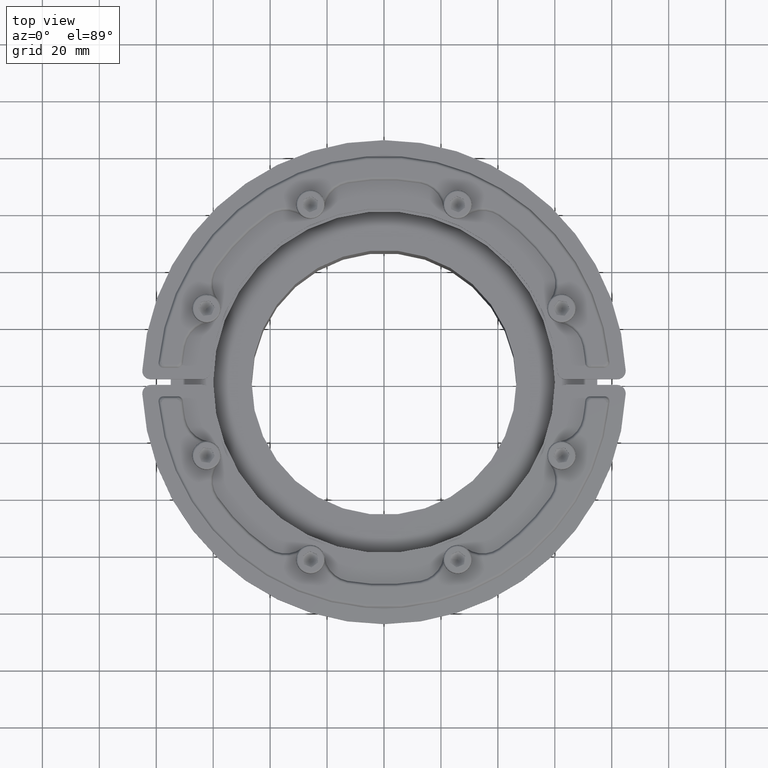
[diagram: clean part render]
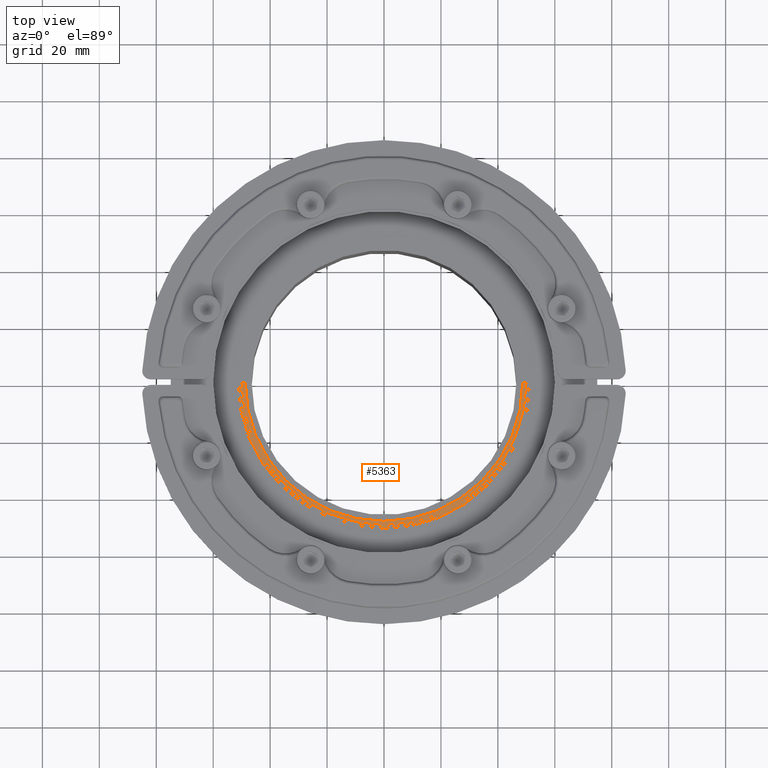
[diagram: same view with one face highlighted and labeled with its STEP entity id]
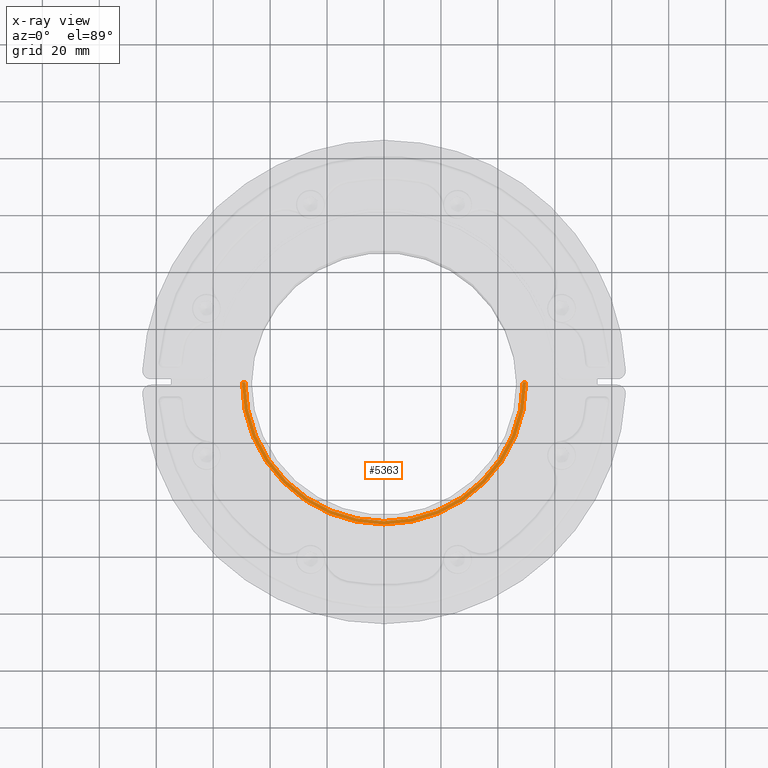
[diagram: x-ray of the same camera — body ghosted, the highlighted face saturated]
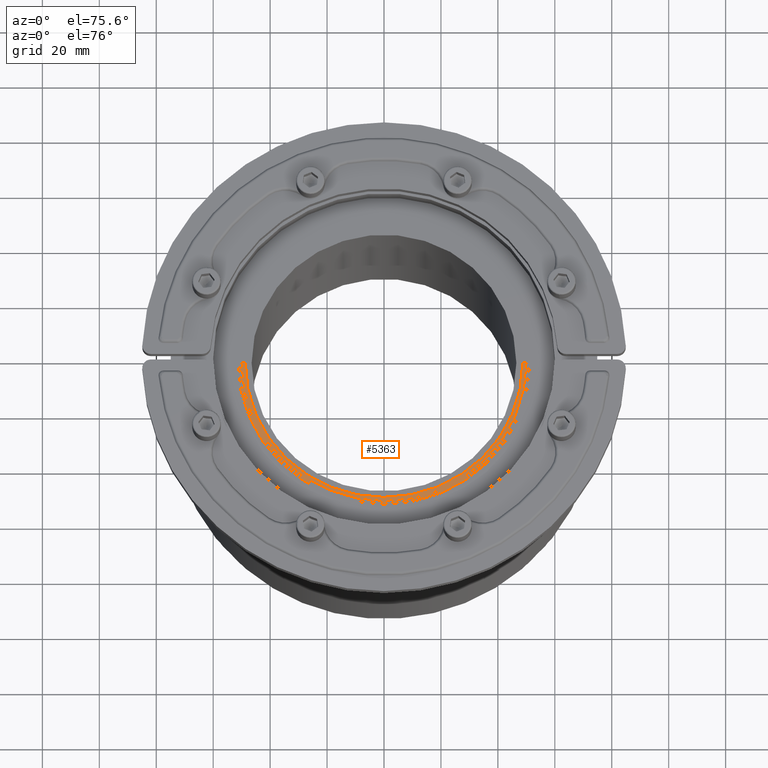
[diagram: same view with one face highlighted and labeled with its STEP entity id]
A machine part, top view. The second image highlights one B-rep face of the part: STEP entity #5363.
The next image is the same camera in x-ray: the body ghosted, the highlighted face saturated — about 0% of this face is hidden behind the body in this view.
A second angle (auxiliary view) of the same face is appended — the face is thin or edge-on in the first view.
In plain terms, the highlighted planar face has unit normal (0, 0, 1).
Its self-contained STEP definition (entity closure, byte-faithful):
#159=PLANE('',#5825);
#474=FACE_OUTER_BOUND('',#793,.T.);
#793=EDGE_LOOP('',(#3776,#3777,#3778,#3779));
#1116=LINE('',#8841,#1408);
#1117=LINE('',#8845,#1409);
#1408=VECTOR('',#6825,10.);
#1409=VECTOR('',#6828,10.);
#1756=CIRCLE('',#5826,49.875);
#1757=CIRCLE('',#5827,48.75);
#2188=VERTEX_POINT('',#8839);
#2189=VERTEX_POINT('',#8840);
#2190=VERTEX_POINT('',#8842);
#2191=VERTEX_POINT('',#8844);
#2768=EDGE_CURVE('',#2188,#2189,#1116,.T.);
#2769=EDGE_CURVE('',#2190,#2188,#1756,.T.);
#2770=EDGE_CURVE('',#2191,#2190,#1117,.T.);
#2771=EDGE_CURVE('',#2191,#2189,#1757,.T.);
#3776=ORIENTED_EDGE('',*,*,#2768,.F.);
#3777=ORIENTED_EDGE('',*,*,#2769,.F.);
#3778=ORIENTED_EDGE('',*,*,#2770,.F.);
#3779=ORIENTED_EDGE('',*,*,#2771,.T.);
#5363=ADVANCED_FACE('',(#474),#159,.T.);
#5825=AXIS2_PLACEMENT_3D('',#8838,#6823,#6824);
#5826=AXIS2_PLACEMENT_3D('',#8843,#6826,#6827);
#5827=AXIS2_PLACEMENT_3D('',#8846,#6829,#6830);
#6823=DIRECTION('center_axis',(0.,0.,1.));
#6824=DIRECTION('ref_axis',(-1.,3.44509284839767E-16,0.));
#6825=DIRECTION('',(1.,-2.22044604925031E-16,0.));
#6826=DIRECTION('center_axis',(0.,0.,-1.));
#6827=DIRECTION('ref_axis',(1.,-3.44509284839767E-16,0.));
#6828=DIRECTION('',(1.,-9.9579925010296E-17,0.));
#6829=DIRECTION('center_axis',(0.,0.,-1.));
#6830=DIRECTION('ref_axis',(1.,-3.44509284839767E-16,0.));
#8838=CARTESIAN_POINT('Origin',(49.3125,-2.38775479764601E-14,-5.75));
#8839=CARTESIAN_POINT('',(-49.875,1.7963408538435E-14,-5.75));
#8840=CARTESIAN_POINT('',(-48.75,1.77136083578944E-14,-5.75));
#8841=CARTESIAN_POINT('',(-49.875,1.7963408538435E-14,-5.75));
#8842=CARTESIAN_POINT('',(49.875,1.92238510791057E-15,-5.75));
#8843=CARTESIAN_POINT('Origin',(-8.43651081073795E-31,-6.88893386779909E-15,
-5.75));
#8844=CARTESIAN_POINT('',(48.75,2.03441252354716E-15,-5.75));
#8845=CARTESIAN_POINT('',(49.875,1.92238510791057E-15,-5.75));
#8846=CARTESIAN_POINT('Origin',(-8.43651081073795E-31,-6.88893386779909E-15,
-5.75));